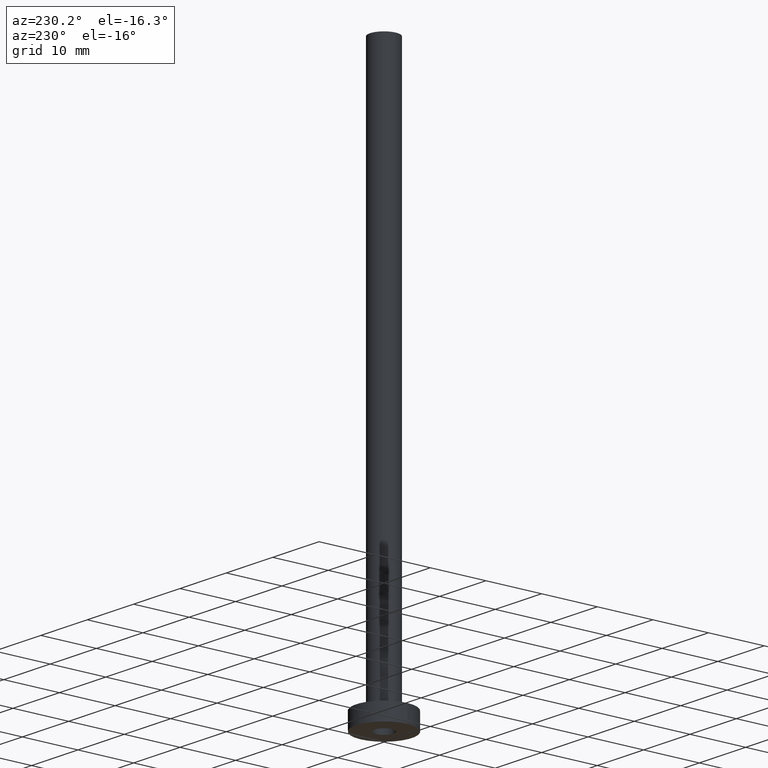
[diagram: clean part render]
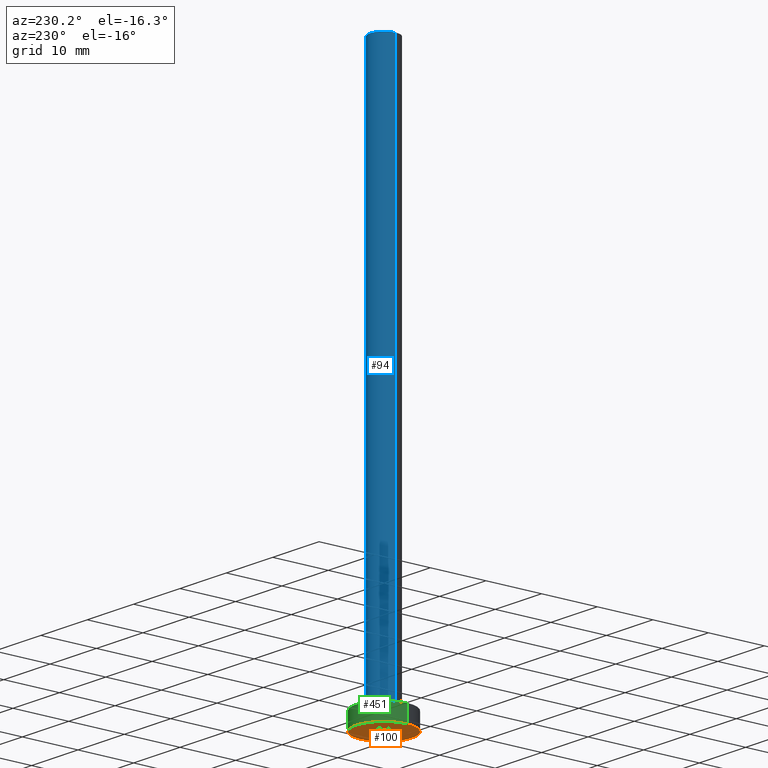
[diagram: same view with three faces highlighted in distinct colors, each labeled with its STEP entity id]
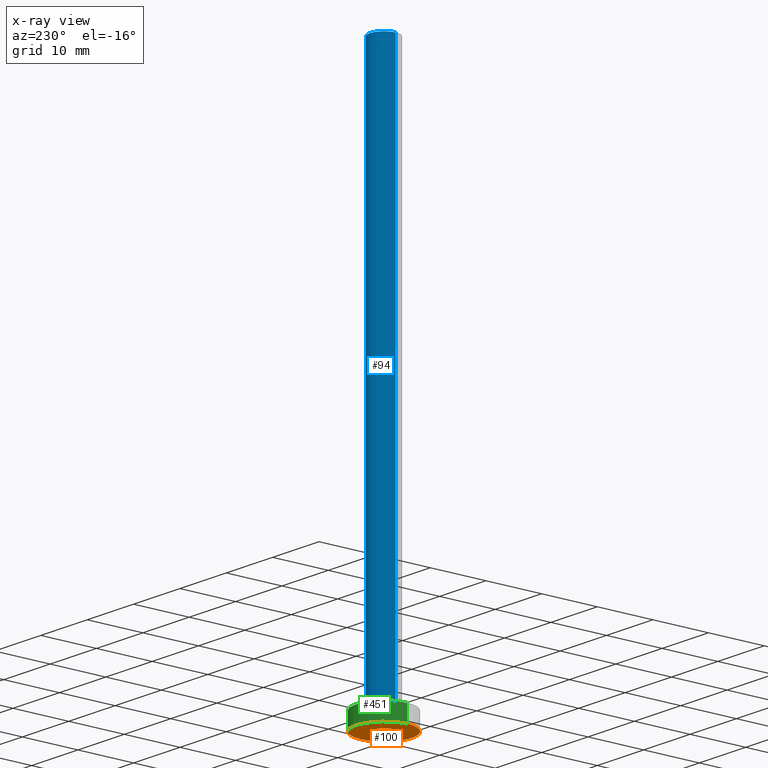
[diagram: x-ray of the same camera — body ghosted, the three highlighted faces saturated]
A machine part, auxiliary view with three faces highlighted in distinct colors.
The next image is the same camera in x-ray (body ghosted, the three faces saturated) — at least one of them is partly hidden behind the body in this view.
Their STEP definitions:

[orange] entity #100 — the highlighted planar face has unit normal (0, 0, 1).
#11 = PLANE ( 'NONE',  #278 ) ;
#18 = ORIENTED_EDGE ( 'NONE', *, *, #51, .F. ) ;
#19 = VERTEX_POINT ( 'NONE', #298 ) ;
#24 = VERTEX_POINT ( 'NONE', #162 ) ;
#33 = AXIS2_PLACEMENT_3D ( 'NONE', #402, #115, #267 ) ;
#41 = EDGE_CURVE ( 'NONE', #223, #19, #202, .T. ) ;
#44 = EDGE_LOOP ( 'NONE', ( #197, #18 ) ) ;
#47 = AXIS2_PLACEMENT_3D ( 'NONE', #347, #350, #138 ) ;
#49 = VERTEX_POINT ( 'NONE', #192 ) ;
#51 = EDGE_CURVE ( 'NONE', #19, #223, #442, .T. ) ;
#60 = CARTESIAN_POINT ( 'NONE',  ( -1.650000000000000133, 0.000000000000000000, 0.000000000000000000 ) ) ;
#62 = DIRECTION ( 'NONE',  ( 1.000000000000000000, 0.000000000000000000, -0.000000000000000000 ) ) ;
#69 = DIRECTION ( 'NONE',  ( 0.000000000000000000, 0.000000000000000000, 1.000000000000000000 ) ) ;
#100 = ADVANCED_FACE ( 'NONE', ( #264, #389 ), #11, .F. ) ;
#115 = DIRECTION ( 'NONE',  ( -0.000000000000000000, -0.000000000000000000, -1.000000000000000000 ) ) ;
#118 = DIRECTION ( 'NONE',  ( 1.000000000000000000, 0.000000000000000000, 0.000000000000000000 ) ) ;
#138 = DIRECTION ( 'NONE',  ( 1.000000000000000000, 0.000000000000000000, 0.000000000000000000 ) ) ;
#146 = ORIENTED_EDGE ( 'NONE', *, *, #345, .F. ) ;
#162 = CARTESIAN_POINT ( 'NONE',  ( 5.000000000000000000, 6.123233995736766282E-16, 0.000000000000000000 ) ) ;
#192 = CARTESIAN_POINT ( 'NONE',  ( -5.000000000000000000, 0.000000000000000000, 0.000000000000000000 ) ) ;
#197 = ORIENTED_EDGE ( 'NONE', *, *, #41, .F. ) ;
#202 = CIRCLE ( 'NONE', #261, 1.650000000000000133 ) ;
#219 = EDGE_LOOP ( 'NONE', ( #146, #408 ) ) ;
#223 = VERTEX_POINT ( 'NONE', #60 ) ;
#243 = AXIS2_PLACEMENT_3D ( 'NONE', #460, #69, #288 ) ;
#247 = DIRECTION ( 'NONE',  ( 0.000000000000000000, 0.000000000000000000, 1.000000000000000000 ) ) ;
#261 = AXIS2_PLACEMENT_3D ( 'NONE', #404, #275, #118 ) ;
#264 = FACE_BOUND ( 'NONE', #44, .T. ) ;
#267 = DIRECTION ( 'NONE',  ( 1.000000000000000000, 0.000000000000000000, 0.000000000000000000 ) ) ;
#275 = DIRECTION ( 'NONE',  ( -0.000000000000000000, -0.000000000000000000, -1.000000000000000000 ) ) ;
#278 = AXIS2_PLACEMENT_3D ( 'NONE', #438, #247, #62 ) ;
#288 = DIRECTION ( 'NONE',  ( 1.000000000000000000, 0.000000000000000000, 0.000000000000000000 ) ) ;
#298 = CARTESIAN_POINT ( 'NONE',  ( 1.650000000000000133, 2.020667218593133001E-16, 0.000000000000000000 ) ) ;
#345 = EDGE_CURVE ( 'NONE', #49, #24, #459, .T. ) ;
#347 = CARTESIAN_POINT ( 'NONE',  ( 0.000000000000000000, 0.000000000000000000, 0.000000000000000000 ) ) ;
#350 = DIRECTION ( 'NONE',  ( 0.000000000000000000, 0.000000000000000000, 1.000000000000000000 ) ) ;
#389 = FACE_OUTER_BOUND ( 'NONE', #219, .T. ) ;
#402 = CARTESIAN_POINT ( 'NONE',  ( 0.000000000000000000, 0.000000000000000000, 0.000000000000000000 ) ) ;
#404 = CARTESIAN_POINT ( 'NONE',  ( 0.000000000000000000, 0.000000000000000000, 0.000000000000000000 ) ) ;
#408 = ORIENTED_EDGE ( 'NONE', *, *, #461, .F. ) ;
#426 = CIRCLE ( 'NONE', #47, 5.000000000000000000 ) ;
#438 = CARTESIAN_POINT ( 'NONE',  ( 0.000000000000000000, 0.000000000000000000, 0.000000000000000000 ) ) ;
#442 = CIRCLE ( 'NONE', #33, 1.650000000000000133 ) ;
#459 = CIRCLE ( 'NONE', #243, 5.000000000000000000 ) ;
#460 = CARTESIAN_POINT ( 'NONE',  ( 0.000000000000000000, 0.000000000000000000, 0.000000000000000000 ) ) ;
#461 = EDGE_CURVE ( 'NONE', #24, #49, #426, .T. ) ;

[blue] entity #94 — the highlighted cylindrical surface (edge-blend (fillet) strip) has radius 2.5 mm, axis along (-0, -0, -1).
#2 = DIRECTION ( 'NONE',  ( -1.000000000000000000, 0.000000000000000000, 0.000000000000000000 ) ) ;
#32 = DIRECTION ( 'NONE',  ( -0.000000000000000000, -0.000000000000000000, -1.000000000000000000 ) ) ;
#76 = EDGE_CURVE ( 'NONE', #375, #415, #256, .T. ) ;
#80 = DIRECTION ( 'NONE',  ( 1.000000000000000000, 0.000000000000000000, 0.000000000000000000 ) ) ;
#94 = ADVANCED_FACE ( 'NONE', ( #108 ), #259, .T. ) ;
#107 = VERTEX_POINT ( 'NONE', #341 ) ;
#108 = FACE_OUTER_BOUND ( 'NONE', #235, .T. ) ;
#154 = ORIENTED_EDGE ( 'NONE', *, *, #338, .T. ) ;
#180 = LINE ( 'NONE', #252, #322 ) ;
#186 = ORIENTED_EDGE ( 'NONE', *, *, #373, .F. ) ;
#199 = ORIENTED_EDGE ( 'NONE', *, *, #76, .F. ) ;
#209 = DIRECTION ( 'NONE',  ( 0.000000000000000000, 0.000000000000000000, 1.000000000000000000 ) ) ;
#212 = EDGE_CURVE ( 'NONE', #375, #107, #344, .T. ) ;
#228 = AXIS2_PLACEMENT_3D ( 'NONE', #395, #32, #2 ) ;
#235 = EDGE_LOOP ( 'NONE', ( #199, #255, #154, #186 ) ) ;
#244 = CARTESIAN_POINT ( 'NONE',  ( 2.500000000000000000, 3.061616997868382648E-16, 100.0000000000000000 ) ) ;
#252 = CARTESIAN_POINT ( 'NONE',  ( -2.500000000000000000, 0.000000000000000000, 100.0000000000000000 ) ) ;
#255 = ORIENTED_EDGE ( 'NONE', *, *, #212, .T. ) ;
#256 = CIRCLE ( 'NONE', #294, 2.500000000000000000 ) ;
#258 = CARTESIAN_POINT ( 'NONE',  ( 0.000000000000000000, 0.000000000000000000, 3.299999999999997158 ) ) ;
#259 = CYLINDRICAL_SURFACE ( 'NONE', #228, 2.500000000000000000 ) ;
#294 = AXIS2_PLACEMENT_3D ( 'NONE', #361, #391, #80 ) ;
#303 = DIRECTION ( 'NONE',  ( -0.000000000000000000, -0.000000000000000000, -1.000000000000000000 ) ) ;
#315 = DIRECTION ( 'NONE',  ( 1.000000000000000000, 0.000000000000000000, 0.000000000000000000 ) ) ;
#322 = VECTOR ( 'NONE', #429, 1000.000000000000000 ) ;
#323 = VERTEX_POINT ( 'NONE', #424 ) ;
#329 = CIRCLE ( 'NONE', #354, 2.500000000000000000 ) ;
#338 = EDGE_CURVE ( 'NONE', #107, #323, #329, .T. ) ;
#341 = CARTESIAN_POINT ( 'NONE',  ( 2.500000000000000000, 3.061616997868382648E-16, 3.299999999999997158 ) ) ;
#344 = LINE ( 'NONE', #244, #434 ) ;
#351 = CARTESIAN_POINT ( 'NONE',  ( 2.500000000000000000, 3.061616997868382648E-16, 100.0000000000000000 ) ) ;
#354 = AXIS2_PLACEMENT_3D ( 'NONE', #258, #209, #315 ) ;
#361 = CARTESIAN_POINT ( 'NONE',  ( 0.000000000000000000, 0.000000000000000000, 100.0000000000000000 ) ) ;
#373 = EDGE_CURVE ( 'NONE', #415, #323, #180, .T. ) ;
#375 = VERTEX_POINT ( 'NONE', #351 ) ;
#391 = DIRECTION ( 'NONE',  ( 0.000000000000000000, 0.000000000000000000, 1.000000000000000000 ) ) ;
#395 = CARTESIAN_POINT ( 'NONE',  ( 0.000000000000000000, 0.000000000000000000, 100.0000000000000000 ) ) ;
#415 = VERTEX_POINT ( 'NONE', #422 ) ;
#422 = CARTESIAN_POINT ( 'NONE',  ( -2.500000000000000000, 0.000000000000000000, 100.0000000000000000 ) ) ;
#424 = CARTESIAN_POINT ( 'NONE',  ( -2.500000000000000000, 0.000000000000000000, 3.299999999999997158 ) ) ;
#429 = DIRECTION ( 'NONE',  ( -0.000000000000000000, -0.000000000000000000, -1.000000000000000000 ) ) ;
#434 = VECTOR ( 'NONE', #303, 1000.000000000000000 ) ;

[green] entity #451 — the highlighted cylindrical surface (edge-blend (fillet) strip) has radius 5 mm, axis along (-0, -0, -1).
#13 = ORIENTED_EDGE ( 'NONE', *, *, #310, .T. ) ;
#14 = VERTEX_POINT ( 'NONE', #15 ) ;
#15 = CARTESIAN_POINT ( 'NONE',  ( 5.000000000000000000, 6.123233995736766282E-16, 3.000000000000000000 ) ) ;
#24 = VERTEX_POINT ( 'NONE', #162 ) ;
#25 = CARTESIAN_POINT ( 'NONE',  ( 5.000000000000000000, 6.123233995736766282E-16, 3.000000000000000000 ) ) ;
#30 = CARTESIAN_POINT ( 'NONE',  ( 0.000000000000000000, 0.000000000000000000, 3.000000000000000000 ) ) ;
#31 = DIRECTION ( 'NONE',  ( -1.000000000000000000, 0.000000000000000000, 0.000000000000000000 ) ) ;
#37 = AXIS2_PLACEMENT_3D ( 'NONE', #30, #285, #31 ) ;
#47 = AXIS2_PLACEMENT_3D ( 'NONE', #347, #350, #138 ) ;
#49 = VERTEX_POINT ( 'NONE', #192 ) ;
#58 = CARTESIAN_POINT ( 'NONE',  ( -5.000000000000000000, 0.000000000000000000, 3.000000000000000000 ) ) ;
#59 = CARTESIAN_POINT ( 'NONE',  ( -5.000000000000000000, 0.000000000000000000, 3.000000000000000000 ) ) ;
#86 = AXIS2_PLACEMENT_3D ( 'NONE', #260, #321, #134 ) ;
#125 = EDGE_CURVE ( 'NONE', #307, #49, #205, .T. ) ;
#127 = CIRCLE ( 'NONE', #86, 5.000000000000000000 ) ;
#132 = FACE_OUTER_BOUND ( 'NONE', #412, .T. ) ;
#134 = DIRECTION ( 'NONE',  ( 1.000000000000000000, 0.000000000000000000, 0.000000000000000000 ) ) ;
#138 = DIRECTION ( 'NONE',  ( 1.000000000000000000, 0.000000000000000000, 0.000000000000000000 ) ) ;
#162 = CARTESIAN_POINT ( 'NONE',  ( 5.000000000000000000, 6.123233995736766282E-16, 0.000000000000000000 ) ) ;
#167 = VECTOR ( 'NONE', #168, 1000.000000000000000 ) ;
#168 = DIRECTION ( 'NONE',  ( -0.000000000000000000, -0.000000000000000000, -1.000000000000000000 ) ) ;
#192 = CARTESIAN_POINT ( 'NONE',  ( -5.000000000000000000, 0.000000000000000000, 0.000000000000000000 ) ) ;
#201 = LINE ( 'NONE', #25, #167 ) ;
#205 = LINE ( 'NONE', #58, #305 ) ;
#211 = CYLINDRICAL_SURFACE ( 'NONE', #37, 5.000000000000000000 ) ;
#214 = ORIENTED_EDGE ( 'NONE', *, *, #125, .F. ) ;
#260 = CARTESIAN_POINT ( 'NONE',  ( 0.000000000000000000, 0.000000000000000000, 3.000000000000000000 ) ) ;
#285 = DIRECTION ( 'NONE',  ( -0.000000000000000000, -0.000000000000000000, -1.000000000000000000 ) ) ;
#305 = VECTOR ( 'NONE', #407, 1000.000000000000000 ) ;
#307 = VERTEX_POINT ( 'NONE', #59 ) ;
#310 = EDGE_CURVE ( 'NONE', #14, #24, #201, .T. ) ;
#321 = DIRECTION ( 'NONE',  ( 0.000000000000000000, 0.000000000000000000, 1.000000000000000000 ) ) ;
#327 = EDGE_CURVE ( 'NONE', #14, #307, #127, .T. ) ;
#331 = ORIENTED_EDGE ( 'NONE', *, *, #461, .T. ) ;
#347 = CARTESIAN_POINT ( 'NONE',  ( 0.000000000000000000, 0.000000000000000000, 0.000000000000000000 ) ) ;
#350 = DIRECTION ( 'NONE',  ( 0.000000000000000000, 0.000000000000000000, 1.000000000000000000 ) ) ;
#392 = ORIENTED_EDGE ( 'NONE', *, *, #327, .F. ) ;
#407 = DIRECTION ( 'NONE',  ( -0.000000000000000000, -0.000000000000000000, -1.000000000000000000 ) ) ;
#412 = EDGE_LOOP ( 'NONE', ( #392, #13, #331, #214 ) ) ;
#426 = CIRCLE ( 'NONE', #47, 5.000000000000000000 ) ;
#451 = ADVANCED_FACE ( 'NONE', ( #132 ), #211, .T. ) ;
#461 = EDGE_CURVE ( 'NONE', #24, #49, #426, .T. ) ;